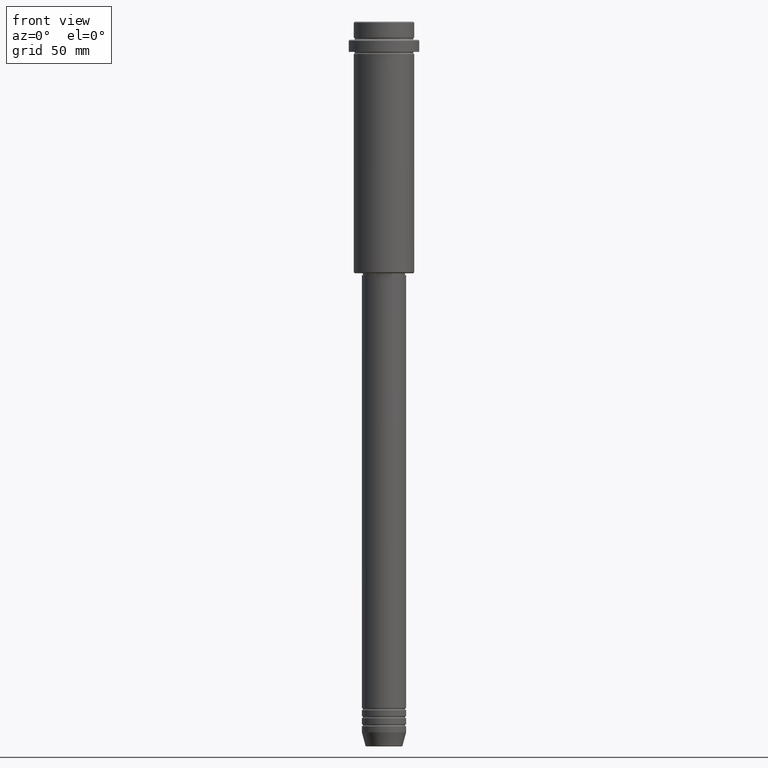
[diagram: clean part render]
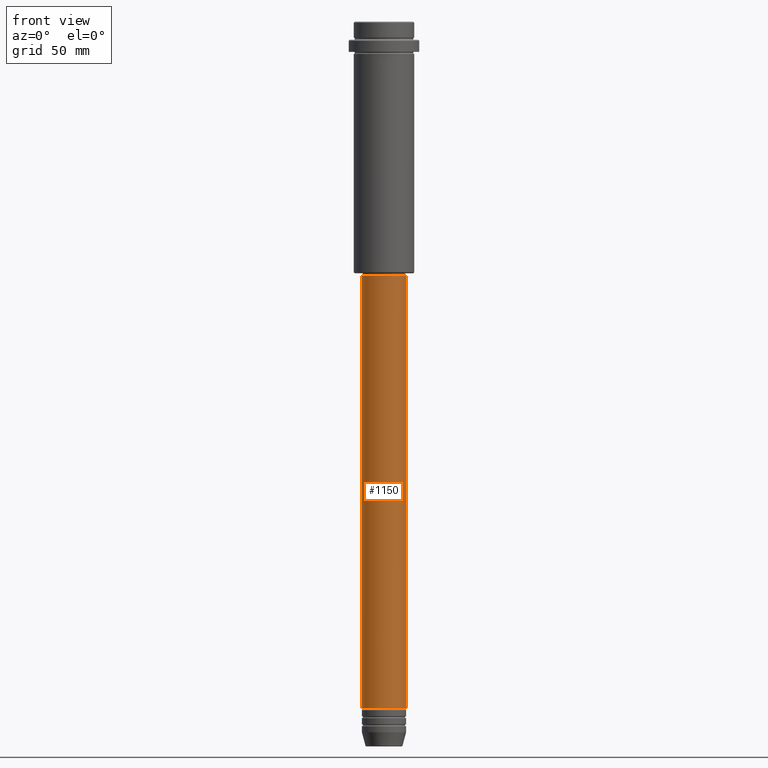
[diagram: same view with one face highlighted and labeled with its STEP entity id]
A machine part, front view. The second image highlights one B-rep face of the part: STEP entity #1150.
In plain terms, the highlighted cylindrical surface (edge-blend (fillet) strip) has radius 11 mm, axis along (-0, -0, 1).
Its self-contained STEP definition (entity closure, byte-faithful):
#67 = LINE ( 'NONE', #1369, #1213 ) ;
#88 = VERTEX_POINT ( 'NONE', #1123 ) ;
#112 = FACE_OUTER_BOUND ( 'NONE', #1180, .T. ) ;
#153 = LINE ( 'NONE', #1231, #360 ) ;
#204 = AXIS2_PLACEMENT_3D ( 'NONE', #1054, #1192, #845 ) ;
#222 = VERTEX_POINT ( 'NONE', #428 ) ;
#225 = ORIENTED_EDGE ( 'NONE', *, *, #1032, .T. ) ;
#232 = CIRCLE ( 'NONE', #944, 11.00000000000000000 ) ;
#243 = EDGE_CURVE ( 'NONE', #1117, #1317, #153, .T. ) ;
#360 = VECTOR ( 'NONE', #1363, 1000.000000000000000 ) ;
#400 = AXIS2_PLACEMENT_3D ( 'NONE', #1025, #815, #705 ) ;
#428 = CARTESIAN_POINT ( 'NONE',  ( 10.99999999999999822, 0.000000000000000000, -125.9999999999999147 ) ) ;
#458 = CARTESIAN_POINT ( 'NONE',  ( -10.99999999999999822, 1.347111479062088207E-15, -125.9999999999999147 ) ) ;
#529 = EDGE_CURVE ( 'NONE', #1117, #88, #232, .T. ) ;
#666 = CARTESIAN_POINT ( 'NONE',  ( 0.000000000000000000, 0.000000000000000000, -340.9999999999998863 ) ) ;
#703 = ORIENTED_EDGE ( 'NONE', *, *, #243, .F. ) ;
#705 = DIRECTION ( 'NONE',  ( 1.000000000000000000, 0.000000000000000000, 0.000000000000000000 ) ) ;
#712 = DIRECTION ( 'NONE',  ( 1.000000000000000000, 0.000000000000000000, 0.000000000000000000 ) ) ;
#815 = DIRECTION ( 'NONE',  ( -0.000000000000000000, -0.000000000000000000, 1.000000000000000000 ) ) ;
#845 = DIRECTION ( 'NONE',  ( 1.000000000000000000, 0.000000000000000000, 0.000000000000000000 ) ) ;
#937 = EDGE_CURVE ( 'NONE', #1317, #222, #1034, .T. ) ;
#944 = AXIS2_PLACEMENT_3D ( 'NONE', #666, #1092, #712 ) ;
#961 = CYLINDRICAL_SURFACE ( 'NONE', #204, 11.00000000000000000 ) ;
#1025 = CARTESIAN_POINT ( 'NONE',  ( 0.000000000000000000, 0.000000000000000000, -125.9999999999999147 ) ) ;
#1032 = EDGE_CURVE ( 'NONE', #88, #222, #67, .T. ) ;
#1034 = CIRCLE ( 'NONE', #400, 10.99999999999999822 ) ;
#1054 = CARTESIAN_POINT ( 'NONE',  ( 0.000000000000000000, 0.000000000000000000, 0.000000000000000000 ) ) ;
#1092 = DIRECTION ( 'NONE',  ( -0.000000000000000000, -0.000000000000000000, 1.000000000000000000 ) ) ;
#1117 = VERTEX_POINT ( 'NONE', #1165 ) ;
#1123 = CARTESIAN_POINT ( 'NONE',  ( 11.00000000000000000, 0.000000000000000000, -340.9999999999998863 ) ) ;
#1134 = ORIENTED_EDGE ( 'NONE', *, *, #529, .T. ) ;
#1150 = ADVANCED_FACE ( 'NONE', ( #112 ), #961, .T. ) ;
#1165 = CARTESIAN_POINT ( 'NONE',  ( -11.00000000000000000, 1.347111479062088405E-15, -340.9999999999998863 ) ) ;
#1180 = EDGE_LOOP ( 'NONE', ( #703, #1134, #225, #1271 ) ) ;
#1192 = DIRECTION ( 'NONE',  ( -0.000000000000000000, -0.000000000000000000, 1.000000000000000000 ) ) ;
#1213 = VECTOR ( 'NONE', #1255, 1000.000000000000000 ) ;
#1231 = CARTESIAN_POINT ( 'NONE',  ( -11.00000000000000000, 1.347111479062088405E-15, 0.000000000000000000 ) ) ;
#1255 = DIRECTION ( 'NONE',  ( -0.000000000000000000, -0.000000000000000000, 1.000000000000000000 ) ) ;
#1271 = ORIENTED_EDGE ( 'NONE', *, *, #937, .F. ) ;
#1317 = VERTEX_POINT ( 'NONE', #458 ) ;
#1363 = DIRECTION ( 'NONE',  ( -0.000000000000000000, -0.000000000000000000, 1.000000000000000000 ) ) ;
#1369 = CARTESIAN_POINT ( 'NONE',  ( 11.00000000000000000, 0.000000000000000000, 0.000000000000000000 ) ) ;